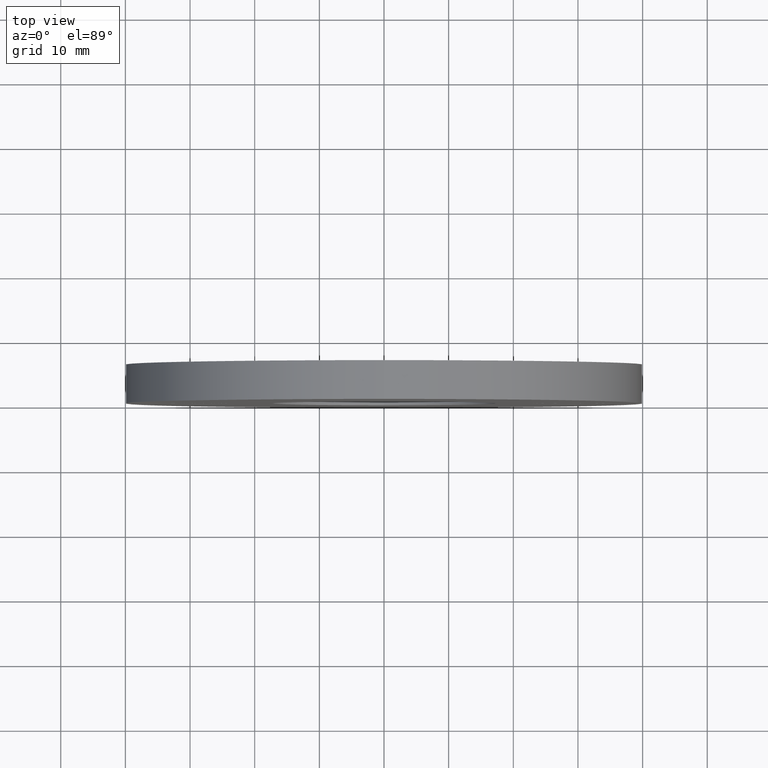
[diagram: clean part render]
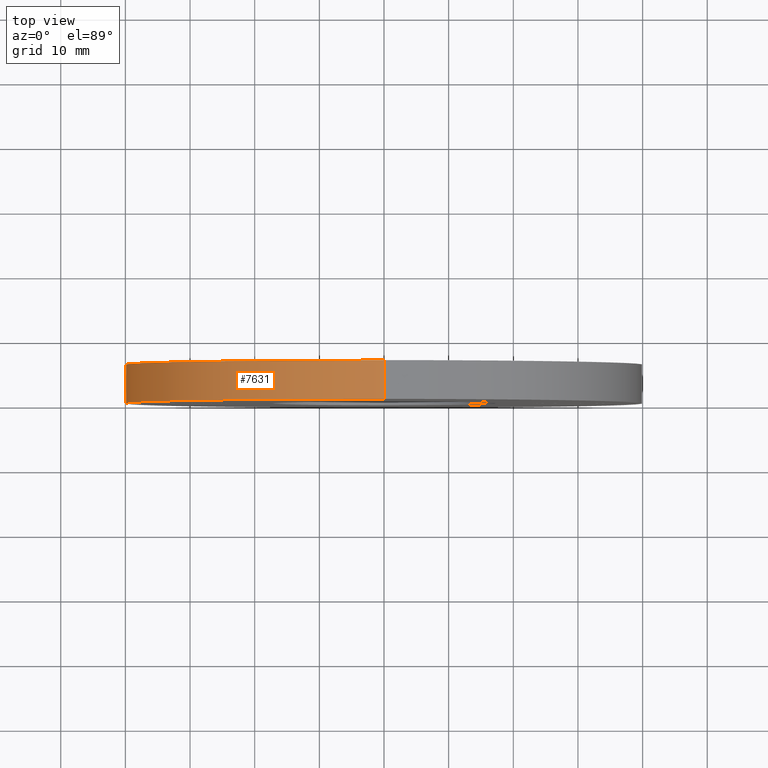
[diagram: same view with one face highlighted and labeled with its STEP entity id]
A machine part, top view. The second image highlights one B-rep face of the part: STEP entity #7631.
In plain terms, the highlighted cylindrical surface (partial cylindrical patch) has radius 40 mm, axis along (-0, -1, -0).
Its self-contained STEP definition (entity closure, byte-faithful):
#774 = DIRECTION ( 'NONE',  ( 0.000000000000000000, 0.000000000000000000, 1.000000000000000000 ) ) ;
#835 = DIRECTION ( 'NONE',  ( -0.000000000000000000, -1.000000000000000000, -0.000000000000000000 ) ) ;
#838 = VERTEX_POINT ( 'NONE', #1918 ) ;
#1075 = DIRECTION ( 'NONE',  ( -0.000000000000000000, -1.000000000000000000, -0.000000000000000000 ) ) ;
#1201 = ORIENTED_EDGE ( 'NONE', *, *, #2511, .F. ) ;
#1271 = EDGE_CURVE ( 'NONE', #838, #4028, #1666, .T. ) ;
#1643 = ORIENTED_EDGE ( 'NONE', *, *, #6350, .T. ) ;
#1666 = CIRCLE ( 'NONE', #15156, 40.00000000000000000 ) ;
#1918 = CARTESIAN_POINT ( 'NONE',  ( 0.000000000000000000, 6.000000000000000000, -40.00000000000000000 ) ) ;
#2008 = CIRCLE ( 'NONE', #11023, 40.00000000000000000 ) ;
#2153 = DIRECTION ( 'NONE',  ( 0.000000000000000000, 0.000000000000000000, -1.000000000000000000 ) ) ;
#2511 = EDGE_CURVE ( 'NONE', #4028, #14199, #13757, .T. ) ;
#3060 = ORIENTED_EDGE ( 'NONE', *, *, #1271, .F. ) ;
#3167 = DIRECTION ( 'NONE',  ( 0.000000000000000000, 1.000000000000000000, 0.000000000000000000 ) ) ;
#4028 = VERTEX_POINT ( 'NONE', #10129 ) ;
#4042 = EDGE_CURVE ( 'NONE', #838, #7760, #10667, .T. ) ;
#4092 = CARTESIAN_POINT ( 'NONE',  ( 4.898587196589413026E-15, 0.000000000000000000, 40.00000000000000000 ) ) ;
#4513 = ORIENTED_EDGE ( 'NONE', *, *, #4042, .T. ) ;
#4522 = VECTOR ( 'NONE', #11048, 1000.000000000000000 ) ;
#5733 = AXIS2_PLACEMENT_3D ( 'NONE', #15263, #835, #2153 ) ;
#6350 = EDGE_CURVE ( 'NONE', #7760, #14199, #2008, .T. ) ;
#7026 = DIRECTION ( 'NONE',  ( 0.000000000000000000, 0.000000000000000000, 1.000000000000000000 ) ) ;
#7631 = ADVANCED_FACE ( 'NONE', ( #8772 ), #13681, .T. ) ;
#7760 = VERTEX_POINT ( 'NONE', #13215 ) ;
#8663 = DIRECTION ( 'NONE',  ( 0.000000000000000000, 1.000000000000000000, 0.000000000000000000 ) ) ;
#8711 = CARTESIAN_POINT ( 'NONE',  ( 0.000000000000000000, 0.000000000000000000, 0.000000000000000000 ) ) ;
#8772 = FACE_OUTER_BOUND ( 'NONE', #14836, .T. ) ;
#9247 = VECTOR ( 'NONE', #1075, 1000.000000000000000 ) ;
#10129 = CARTESIAN_POINT ( 'NONE',  ( 4.898587196589413026E-15, 6.000000000000000000, 40.00000000000000000 ) ) ;
#10667 = LINE ( 'NONE', #16830, #9247 ) ;
#11023 = AXIS2_PLACEMENT_3D ( 'NONE', #8711, #8663, #774 ) ;
#11048 = DIRECTION ( 'NONE',  ( -0.000000000000000000, -1.000000000000000000, -0.000000000000000000 ) ) ;
#13215 = CARTESIAN_POINT ( 'NONE',  ( 0.000000000000000000, 0.000000000000000000, -40.00000000000000000 ) ) ;
#13611 = CARTESIAN_POINT ( 'NONE',  ( 4.898587196589413026E-15, 6.000000000000000000, 40.00000000000000000 ) ) ;
#13681 = CYLINDRICAL_SURFACE ( 'NONE', #5733, 40.00000000000000000 ) ;
#13757 = LINE ( 'NONE', #13611, #4522 ) ;
#14199 = VERTEX_POINT ( 'NONE', #4092 ) ;
#14836 = EDGE_LOOP ( 'NONE', ( #1201, #3060, #4513, #1643 ) ) ;
#14935 = CARTESIAN_POINT ( 'NONE',  ( 0.000000000000000000, 6.000000000000000000, 0.000000000000000000 ) ) ;
#15156 = AXIS2_PLACEMENT_3D ( 'NONE', #14935, #3167, #7026 ) ;
#15263 = CARTESIAN_POINT ( 'NONE',  ( 0.000000000000000000, 6.000000000000000000, 0.000000000000000000 ) ) ;
#16830 = CARTESIAN_POINT ( 'NONE',  ( 0.000000000000000000, 6.000000000000000000, -40.00000000000000000 ) ) ;